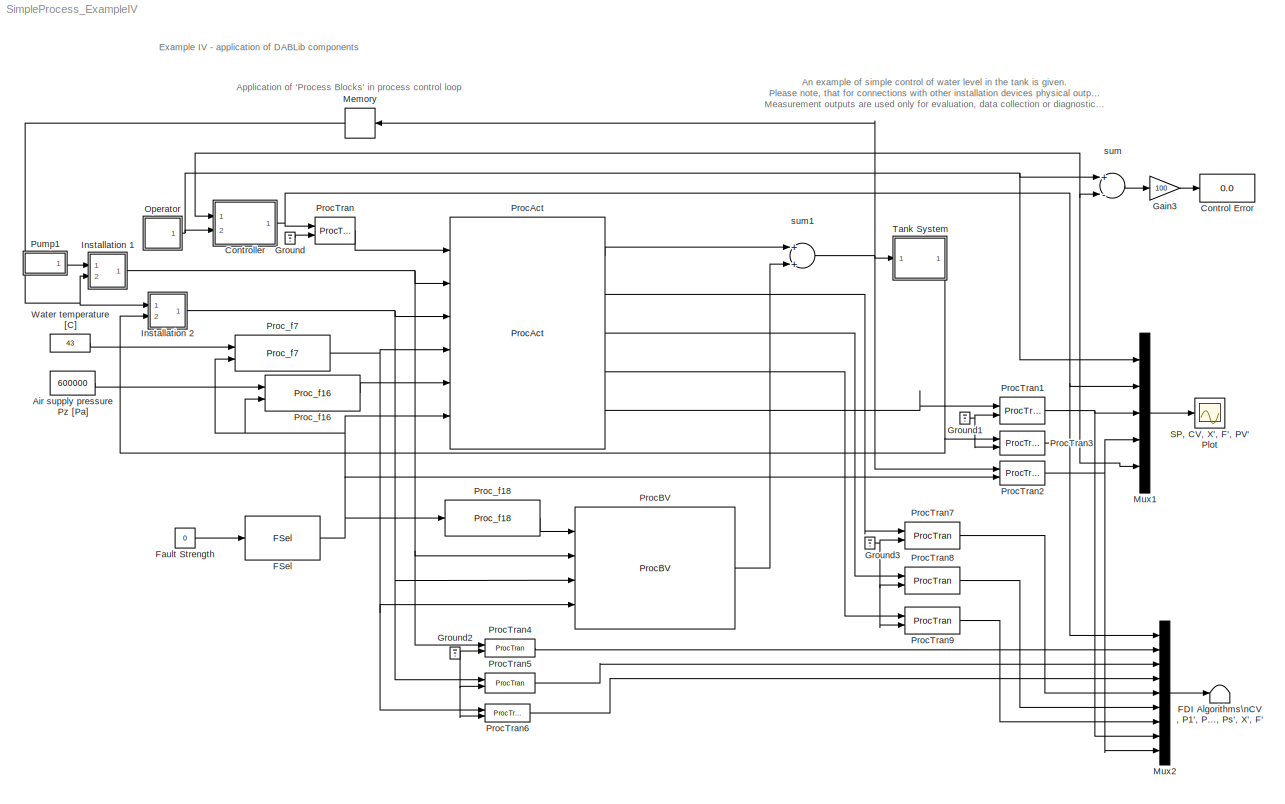
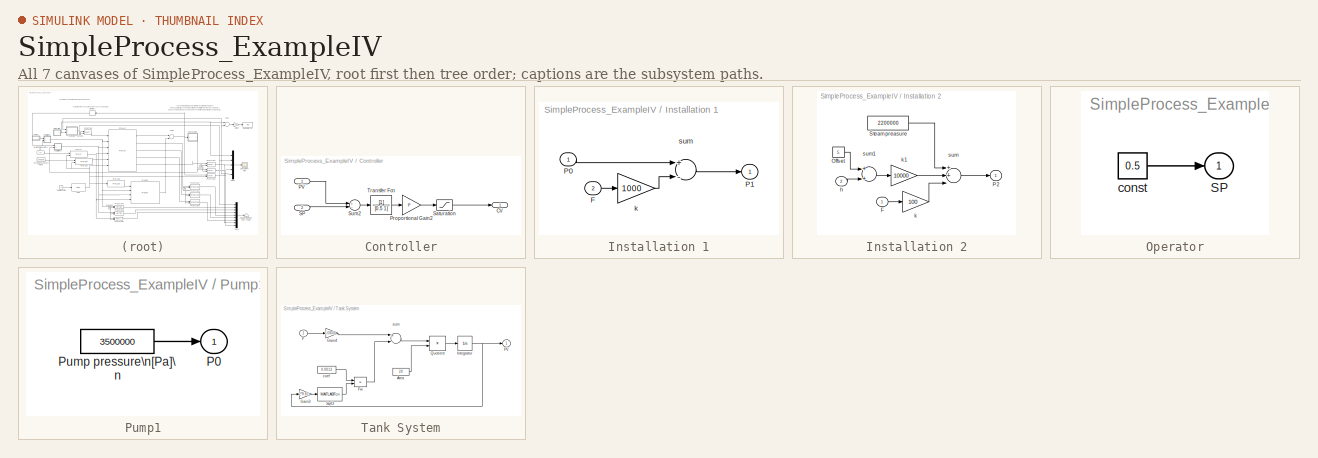
[diagram: thumbnail index - all 7 canvases of the model, root first then tree order]
MODEL SimpleProcess_ExampleIV
KIND model
CONFIG AbsTol = 1e-6
CONFIG FixedStep = 0.0025
CONFIG MaxStep = auto
CONFIG RelTol = 1e-3
CONFIG Solver = ode4
CONFIG StartTime = 0.0
CONFIG StopTime = 150
BLOCK [Constant] Air supply pressure Pz [Pa]
  Value = 600000
BLOCK [Display] Control Error
  Decimation = 1
  Floating = off
  Format = bank
  Ports = [1, 0, 0, 0, 0]
  SampleTime = 0.1
BLOCK [SubSystem] Controller
  MaskDescription = CV=min ( LIMIT(2); max( LIMIT(1); (SP-PV)*(1+1/Is+Ds)*P ) )
  MaskDisplay = disp('I')
  MaskIconFrame = on
  MaskIconOpaque = off
  MaskIconRotate = port
  MaskIconUnits = autoscale
  MaskPromptString = Proportional:|Limits:|Integration Limits:
  MaskStyleString = edit,edit,edit
  MaskTunableValueString = on,on,on
  MaskType = Rozszerzony Regulator PID
  MaskValueString = 100|[0 1]|[0 1]
  MaskVariables = P=@1;LIMIT=@2;ILIMIT=@3;
  Ports = [2, 1, 0, 0, 0]
  ShowPortLabels = on
BLOCK [Outport] Controller/CV
  InitialOutput = 0
  OutputWhenDisabled = held
  Port = 1
BLOCK [Inport] Controller/PV
  Port = 1
  PortWidth = -1
  SampleTime = -1
BLOCK [Gain] Controller/Proportional Gain2
  Gain = P
BLOCK [Inport] Controller/SP
  Port = 2
  PortWidth = -1
  SampleTime = -1
BLOCK [Saturate] Controller/Saturation
  LowerLimit = LIMIT(1)
  UpperLimit = LIMIT(2)
BLOCK [Sum] Controller/Sum2
  Inputs = +-
  Ports = [2, 1, 0, 0, 0]
BLOCK [TransferFcn] Controller/Transfer Fcn
  Denominator = [0.5 1]
  Numerator = [1]
BLOCK [Terminator] FDI Algorithms\nCV, P1', P2', T1'\nPz', CVI', Ps', X', F'
BLOCK [Reference] FSel  REF=DABLib/FSel
  FSel = NO FAULT
  Ports = [1, 1, 0, 0, 0]
  SourceBlock = DABLib/FSel
  SourceType = Fault vector element attribution
BLOCK [Constant] Fault Strength
  Value = 0
BLOCK [Gain] Gain3
  Gain = 100
BLOCK [Ground] Ground
BLOCK [Ground] Ground1
BLOCK [Ground] Ground2
BLOCK [Ground] Ground3
BLOCK [SubSystem] Installation 1
  Ports = [2, 1, 0, 0, 0]
  ShowPortLabels = on
BLOCK [Inport] Installation 1/F
  Port = 2
  PortWidth = -1
  SampleTime = -1
BLOCK [Inport] Installation 1/P0
  Port = 1
  PortWidth = -1
  SampleTime = -1
BLOCK [Outport] Installation 1/P1
  InitialOutput = 0
  OutputWhenDisabled = held
  Port = 1
BLOCK [Gain] Installation 1/k
  Gain = 1000
BLOCK [Sum] Installation 1/sum
  Inputs = +-
  Ports = [2, 1, 0, 0, 0]
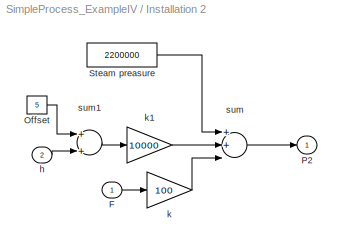
BLOCK [SubSystem] Installation 2
  Ports = [2, 1, 0, 0, 0]
  ShowPortLabels = on
BLOCK [Inport] Installation 2/F
  Port = 1
  PortWidth = -1
  SampleTime = -1
BLOCK [Constant] Installation 2/Offset
  Value = 5
BLOCK [Outport] Installation 2/P2
  InitialOutput = 0
  OutputWhenDisabled = held
  Port = 1
BLOCK [Constant] Installation 2/Steam preasure
  Value = 2200000
BLOCK [Inport] Installation 2/h
  Port = 2
  PortWidth = -1
  SampleTime = -1
BLOCK [Gain] Installation 2/k
  Gain = 100
BLOCK [Gain] Installation 2/k1
  Gain = 10000
BLOCK [Sum] Installation 2/sum
  Inputs = 3
  Ports = [3, 1, 0, 0, 0]
BLOCK [Sum] Installation 2/sum1
  Inputs = 2
  Ports = [2, 1, 0, 0, 0]
BLOCK [Memory] Memory
  InheritSampleTime = off
  X0 = 0
BLOCK [Mux] Mux1
  Inputs = 5
  Ports = [5, 1, 0, 0, 0]
BLOCK [Mux] Mux2
  Inputs = 9
  Ports = [9, 1, 0, 0, 0]
BLOCK [SubSystem] Operator
  Ports = [0, 1, 0, 0, 0]
  ShowPortLabels = on
BLOCK [Outport] Operator/SP
  InitialOutput = 0
  OutputWhenDisabled = held
  Port = 1
BLOCK [Constant] Operator/const
  Value = 0.5
BLOCK [Reference] ProcAct  REF=DABLib/ProcessBlk/ProcAct
  Ports = [6, 5, 0, 0, 0]
  SourceBlock = DABLib/ProcessBlk/ProcAct
  SourceType = Process Actuator
BLOCK [Reference] ProcBV  REF=DABLib/ProcessBlk/ProcBV
  Ports = [4, 1, 0, 0, 0]
  SourceBlock = DABLib/ProcessBlk/ProcBV
  SourceType = Process By-pass Valve
BLOCK [Reference] ProcTran  REF=DABLib/ProcessBlk/ProcTran
  EN = on
  FSel = NO FAULT
  Ports = [2, 1, 0, 0, 0]
  ScFact = 1
  Sd = [435435431]
  SourceBlock = DABLib/ProcessBlk/ProcTran
  SourceType = Process Transducer
BLOCK [Reference] ProcTran1  REF=DABLib/ProcessBlk/ProcTran
  EN = on
  FSel = NO FAULT
  Ports = [2, 1, 0, 0, 0]
  ScFact = 1
  Sd = [43543513]
  SourceBlock = DABLib/ProcessBlk/ProcTran
  SourceType = Process Transducer
BLOCK [Reference] ProcTran2  REF=DABLib/ProcessBlk/ProcTran
  EN = on
  FSel = f19 - Flow rate sensor fault
  Ports = [2, 1, 0, 0, 0]
  ScFact = 40
  Sd = [324125]
  SourceBlock = DABLib/ProcessBlk/ProcTran
  SourceType = Process Transducer
BLOCK [Reference] ProcTran3  REF=DABLib/ProcessBlk/ProcTran
  EN = on
  FSel = NO FAULT
  Ports = [2, 1, 0, 0, 0]
  ScFact = 2
  Sd = [568478435]
  SourceBlock = DABLib/ProcessBlk/ProcTran
  SourceType = Process Transducer
BLOCK [Reference] ProcTran4  REF=DABLib/ProcessBlk/ProcTran
  EN = on
  FSel = NO FAULT
  Ports = [2, 1, 0, 0, 0]
  ScFact = 1
  Sd = [123465]
  SourceBlock = DABLib/ProcessBlk/ProcTran
  SourceType = Process Transducer
BLOCK [Reference] ProcTran5  REF=DABLib/ProcessBlk/ProcTran
  EN = on
  FSel = NO FAULT
  Ports = [2, 1, 0, 0, 0]
  ScFact = 1
  Sd = [143534565]
  SourceBlock = DABLib/ProcessBlk/ProcTran
  SourceType = Process Transducer
BLOCK [Reference] ProcTran6  REF=DABLib/ProcessBlk/ProcTran
  EN = on
  FSel = NO FAULT
  Ports = [2, 1, 0, 0, 0]
  ScFact = 1
  Sd = [452543]
  SourceBlock = DABLib/ProcessBlk/ProcTran
  SourceType = Process Transducer
BLOCK [Reference] ProcTran7  REF=DABLib/ProcessBlk/ProcTran
  EN = on
  FSel = NO FAULT
  Ports = [2, 1, 0, 0, 0]
  ScFact = 1
  Sd = [65487986798]
  SourceBlock = DABLib/ProcessBlk/ProcTran
  SourceType = Process Transducer
BLOCK [Reference] ProcTran8  REF=DABLib/ProcessBlk/ProcTran
  EN = on
  FSel = NO FAULT
  Ports = [2, 1, 0, 0, 0]
  ScFact = 1
  Sd = [647658748]
  SourceBlock = DABLib/ProcessBlk/ProcTran
  SourceType = Process Transducer
BLOCK [Reference] ProcTran9  REF=DABLib/ProcessBlk/ProcTran
  EN = on
  FSel = NO FAULT
  Ports = [2, 1, 0, 0, 0]
  ScFact = 1
  Sd = [5465462]
  SourceBlock = DABLib/ProcessBlk/ProcTran
  SourceType = Process Transducer
BLOCK [Reference] Proc_f16  REF=DABLib/ProcessBlk/Proc_f16
  Ports = [2, 1, 0, 0, 0]
  SourceBlock = DABLib/ProcessBlk/Proc_f16
  SourceType = Fault
BLOCK [Reference] Proc_f18  REF=DABLib/ProcessBlk/Proc_f18
  Ports = [1, 1, 0, 0, 0]
  SourceBlock = DABLib/ProcessBlk/Proc_f18
  SourceType = Fault
BLOCK [Reference] Proc_f7  REF=DABLib/ProcessBlk/Proc_f7
  Ports = [2, 1, 0, 0, 0]
  SourceBlock = DABLib/ProcessBlk/Proc_f7
  SourceType = Fault
BLOCK [SubSystem] Pump1
  Ports = [0, 1, 0, 0, 0]
  ShowPortLabels = on
BLOCK [Outport] Pump1/P0
  InitialOutput = 0
  OutputWhenDisabled = held
  Port = 1
BLOCK [Constant] Pump1/Pump pressure\n[Pa]\n
  Value = 3500000
BLOCK [Scope] SP, CV, X', F', PV' Plot
  Decimation = 1
  Floating = off
  Grid = on
  LimitMaxRows = off
  MaxRows = 5000
  Ports = [1, 0, 0, 0, 0]
  SampleInput = off
  SampleTime = 0
  SaveName = ScopeData
  SaveToWorkspace = off
  TickLabels = on
  TimeRange = 150
  YMax = 1
  YMin = 0
  ZoomMode = xonly
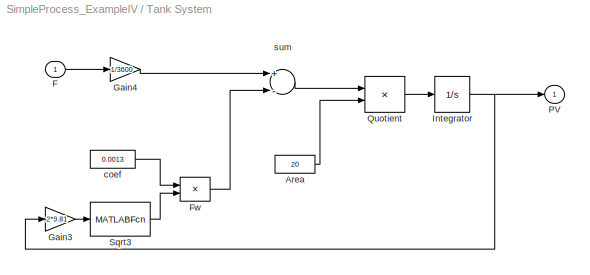
BLOCK [SubSystem] Tank System
  Ports = [1, 1, 0, 0, 0]
  ShowPortLabels = on
BLOCK [Constant] Tank System/Area
  Value = 20
BLOCK [Inport] Tank System/F
  Port = 1
  PortWidth = -1
  SampleTime = -1
BLOCK [Product] Tank System/Fw
  Inputs = 2
  Ports = [2, 1, 0, 0, 0]
BLOCK [Gain] Tank System/Gain3
  Gain = 2*9.81
BLOCK [Gain] Tank System/Gain4
  Gain = 1/3600
BLOCK [Integrator] Tank System/Integrator
  AbsoluteTolerance = auto
  ExternalReset = none
  InitialCondition = 0.9
  InitialConditionSource = internal
  LimitOutput = on
  LowerSaturationLimit = 0
  Ports = [1, 1, 0, 0, 0]
  ShowSaturationPort = off
  ShowStatePort = off
  UpperSaturationLimit = 2
BLOCK [Outport] Tank System/PV
  InitialOutput = 0
  OutputWhenDisabled = held
  Port = 1
BLOCK [Product] Tank System/Quotient
  Inputs = */
  Ports = [2, 1, 0, 0, 0]
BLOCK [MATLABFcn] Tank System/Sqrt3
  MATLABFcn = sqrt
  OutputWidth = -1
BLOCK [Constant] Tank System/coef
  Value = 0.0013
BLOCK [Sum] Tank System/sum
  Inputs = +-
  Ports = [2, 1, 0, 0, 0]
BLOCK [Constant] Water temperature [C]
  Value = 43
BLOCK [Sum] sum
  Inputs = +-
  Ports = [2, 1, 0, 0, 0]
BLOCK [Sum] sum1
  Inputs = 2
  Ports = [2, 1, 0, 0, 0]
LINE Air supply pressure Pz [Pa]:1 -> Proc_f16:1
LINE Controller/PV:1 -> Controller/Sum2:1
LINE Controller/Proportional Gain2:1 -> Controller/Saturation:1
LINE Controller/SP:1 -> Controller/Sum2:2
LINE Controller/Saturation:1 -> Controller/CV:1
LINE Controller/Sum2:1 -> Controller/Transfer Fcn:1
LINE Controller/Transfer Fcn:1 -> Controller/Proportional Gain2:1
NET Controller:1 -> Mux1:2, Mux2:1, ProcTran:1
NET FSel:1 -> ProcAct:6, ProcTran2:2, Proc_f16:2, Proc_f18:1, Proc_f7:2
LINE Fault Strength:1 -> FSel:1
LINE Gain3:1 -> Control Error:1
NET Ground1:1 -> ProcTran1:2, ProcTran3:2
NET Ground2:1 -> ProcTran4:2, ProcTran5:2, ProcTran6:2
NET Ground3:1 -> ProcTran7:2, ProcTran8:2, ProcTran9:2
LINE Ground:1 -> ProcTran:2
LINE Installation 1/F:1 -> Installation 1/k:1
LINE Installation 1/P0:1 -> Installation 1/sum:1
LINE Installation 1/k:1 -> Installation 1/sum:2
LINE Installation 1/sum:1 -> Installation 1/P1:1
NET Installation 1:1 -> ProcAct:2, ProcBV:2, ProcTran4:1
LINE Installation 2/F:1 -> Installation 2/k:1
LINE Installation 2/Offset:1 -> Installation 2/sum1:1
LINE Installation 2/Steam preasure:1 -> Installation 2/sum:1
LINE Installation 2/h:1 -> Installation 2/sum1:2
LINE Installation 2/k1:1 -> Installation 2/sum:2
LINE Installation 2/k:1 -> Installation 2/sum:3
LINE Installation 2/sum1:1 -> Installation 2/k1:1
LINE Installation 2/sum:1 -> Installation 2/P2:1
NET Installation 2:1 -> ProcAct:3, ProcBV:3, ProcTran5:1
NET Memory:1 -> Installation 1:2, Installation 2:1
LINE Mux1:1 -> SP, CV, X', F', PV' Plot:1
LINE Mux2:1 -> FDI Algorithms\nCV, P1', P2', T1'\nPz', CVI', Ps', X', F':1
LINE Operator/const:1 -> Operator/SP:1
NET Operator:1 -> Controller:2, Mux1:1, sum:1
LINE ProcAct:1 -> sum1:1
LINE ProcAct:2 -> ProcTran7:1
LINE ProcAct:3 -> ProcTran8:1
LINE ProcAct:4 -> ProcTran9:1
LINE ProcAct:5 -> ProcTran1:1
LINE ProcBV:1 -> sum1:2
NET ProcTran1:1 -> Mux1:3, Mux2:8
NET ProcTran2:1 -> Mux1:4, Mux2:9
NET ProcTran3:1 -> Controller:1, Mux1:5, sum:2
LINE ProcTran4:1 -> Mux2:2
LINE ProcTran5:1 -> Mux2:3
LINE ProcTran6:1 -> Mux2:4
LINE ProcTran7:1 -> Mux2:5
LINE ProcTran8:1 -> Mux2:6
LINE ProcTran9:1 -> Mux2:7
LINE ProcTran:1 -> ProcAct:1
LINE Proc_f16:1 -> ProcAct:5
LINE Proc_f18:1 -> ProcBV:1
NET Proc_f7:1 -> ProcAct:4, ProcBV:4, ProcTran6:1
LINE Pump1/Pump pressure\n[Pa]\n:1 -> Pump1/P0:1
LINE Pump1:1 -> Installation 1:1
LINE Tank System/Area:1 -> Tank System/Quotient:2
LINE Tank System/F:1 -> Tank System/Gain4:1
LINE Tank System/Fw:1 -> Tank System/sum:2
LINE Tank System/Gain3:1 -> Tank System/Sqrt3:1
LINE Tank System/Gain4:1 -> Tank System/sum:1
NET Tank System/Integrator:1 -> Tank System/Gain3:1, Tank System/PV:1
LINE Tank System/Quotient:1 -> Tank System/Integrator:1
LINE Tank System/Sqrt3:1 -> Tank System/Fw:2
LINE Tank System/coef:1 -> Tank System/Fw:1
LINE Tank System/sum:1 -> Tank System/Quotient:1
NET Tank System:1 -> Installation 2:2, ProcTran3:1
LINE Water temperature [C]:1 -> Proc_f7:1
NET sum1:1 -> Memory:1, ProcTran2:1, Tank System:1
LINE sum:1 -> Gain3:1
note: NET lines group one-source signal fan-out (src -> all destinations, sorted); 1:1 wires keep LINE
